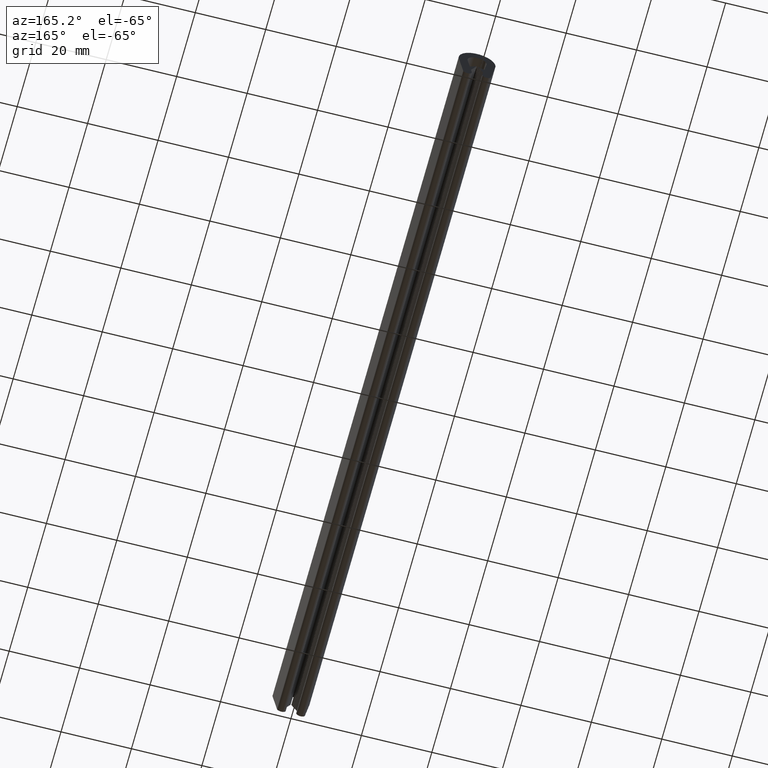
[diagram: clean part render]
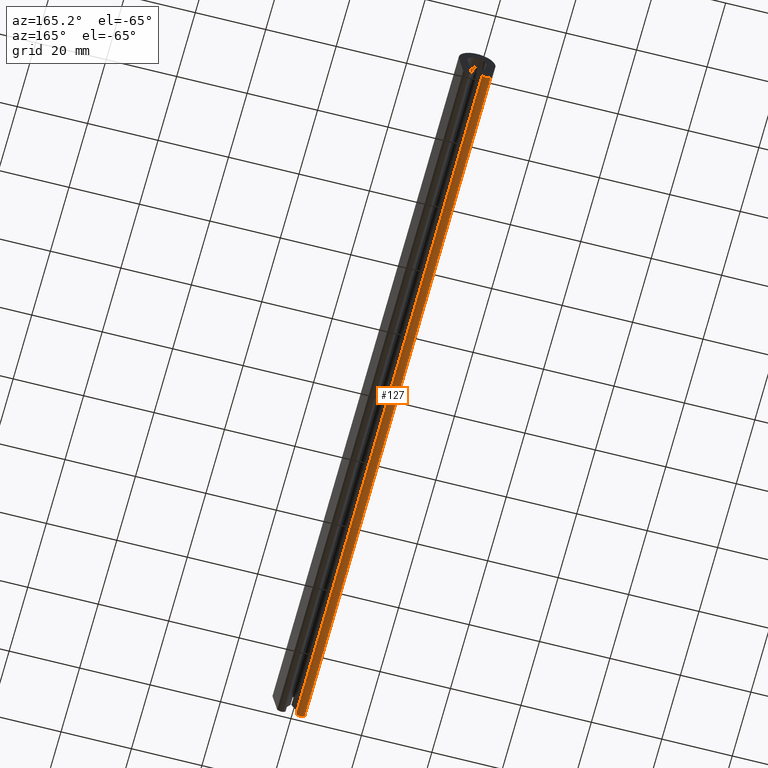
[diagram: same view with one face highlighted and labeled with its STEP entity id]
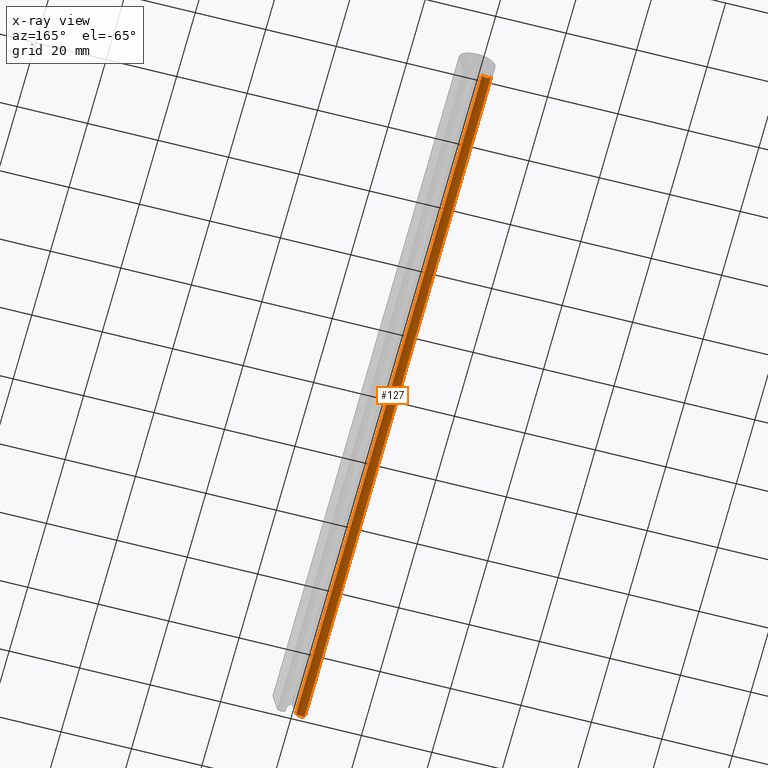
[diagram: x-ray of the same camera — body ghosted, the highlighted face saturated]
A machine part, auxiliary view. The second image highlights one B-rep face of the part: STEP entity #127.
The next image is the same camera in x-ray: the body ghosted, the highlighted face saturated — about 0% of this face is hidden behind the body in this view.
In plain terms, the highlighted cylindrical surface (edge-blend (fillet) strip) has radius 1.25 mm, axis along (0, -1, -0).
Its self-contained STEP definition (entity closure, byte-faithful):
#127=ADVANCED_FACE('',(#299),#298,.T.);
#298=CYLINDRICAL_SURFACE('',#568,1.25000000000E+00);
#299=FACE_OUTER_BOUND('',#569,.T.);
#565=CARTESIAN_POINT('',(-2.73299865386E+00,-5.12500000000E+00,-1.27500000000E+01));
#566=DIRECTION('',(1.60035142165E-15,-1.00000000000E+00,-8.26344405190E-15));
#567=DIRECTION('',(-1.55754885079E-01,-8.41185734971E-15,9.87795735855E-01));
#568=AXIS2_PLACEMENT_3D('',#565,#566,#567);
#569=EDGE_LOOP('',(#756,#757,#758,#759));
#756=ORIENTED_EDGE('',*,*,#848,.F.);
#757=ORIENTED_EDGE('',*,*,#898,.F.);
#758=ORIENTED_EDGE('',*,*,#884,.T.);
#759=ORIENTED_EDGE('',*,*,#897,.T.);
#848=EDGE_CURVE('',#980,#987,#988,.T.);
#884=EDGE_CURVE('',#1231,#1224,#1232,.T.);
#897=EDGE_CURVE('',#1224,#987,#1316,.T.);
#898=EDGE_CURVE('',#1231,#980,#1322,.T.);
#980=VERTEX_POINT('',#1561);
#987=VERTEX_POINT('',#1565);
#988=CIRCLE('',#1569,1.25000000000E+00);
#1224=VERTEX_POINT('',#1704);
#1231=VERTEX_POINT('',#1708);
#1232=CIRCLE('',#1712,1.25000000000E+00);
#1316=LINE('',#1757,#1758);
#1322=LINE('',#1760,#1761);
#1561=CARTESIAN_POINT('',(-3.96599730772E+00,0.00000000000E+00,-1.29554612362E+01));
#1565=CARTESIAN_POINT('',(-1.50000000000E+00,0.00000000000E+00,-1.25445387638E+01));
#1566=CARTESIAN_POINT('',(-2.73299865386E+00,0.00000000000E+00,-1.27500000000E+01));
#1567=DIRECTION('',(0.00000000000E+00,-1.00000000000E+00,-0.00000000000E+00));
#1568=DIRECTION('',(-9.86398923087E-01,0.00000000000E+00,-1.64368988965E-01));
#1569=AXIS2_PLACEMENT_3D('',#1566,#1567,#1568);
#1704=CARTESIAN_POINT('',(-1.50000000000E+00,2.00000000000E+02,-1.25445387638E+01));
#1708=CARTESIAN_POINT('',(-3.96599730772E+00,2.00000000000E+02,-1.29554612362E+01));
#1709=CARTESIAN_POINT('',(-2.73299865386E+00,2.00000000000E+02,-1.27500000000E+01));
#1710=DIRECTION('',(1.12119543450E-14,-1.00000000000E+00,-6.72843445786E-14));
#1711=DIRECTION('',(-9.86398923087E-01,-8.35329742919E-30,-1.64368988965E-01));
#1712=AXIS2_PLACEMENT_3D('',#1709,#1710,#1711);
#1757=CARTESIAN_POINT('',(-1.50000000000E+00,2.00000000000E+02,-1.25445387638E+01));
#1758=VECTOR('',#1759,2.00000000000E+02);
#1759=DIRECTION('',(0.00000000000E+00,-1.00000000000E+00,0.00000000000E+00));
#1760=CARTESIAN_POINT('',(-3.96599730772E+00,2.00000000000E+02,-1.29554612362E+01));
#1761=VECTOR('',#1762,2.00000000000E+02);
#1762=DIRECTION('',(0.00000000000E+00,-1.00000000000E+00,0.00000000000E+00));